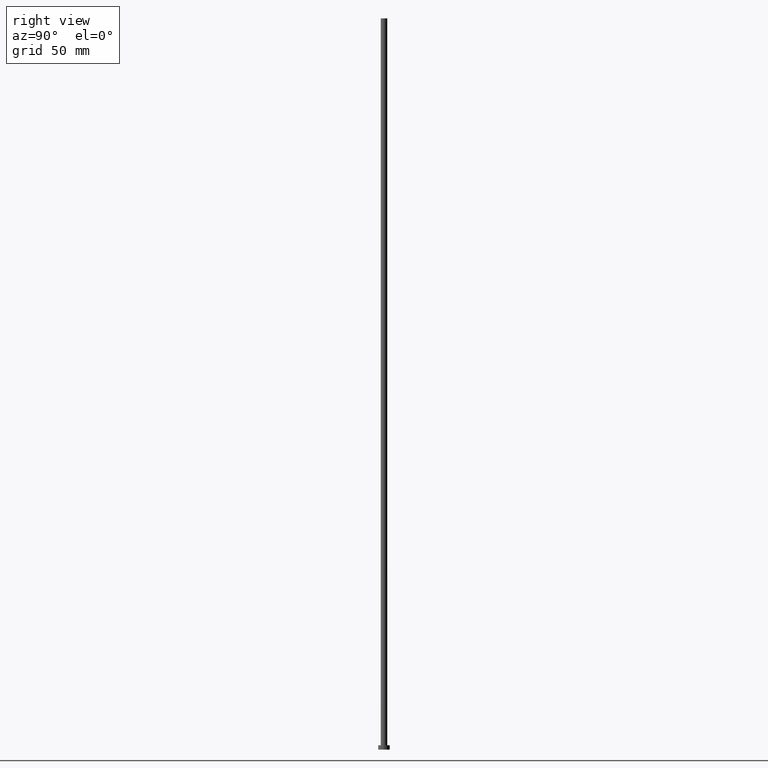
[diagram: clean part render]
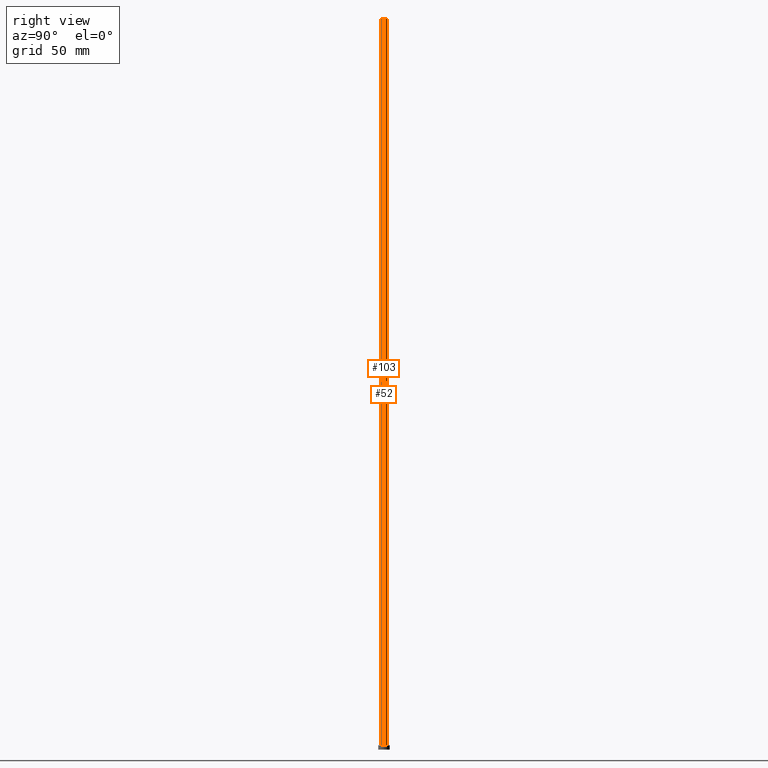
[diagram: same view with one multi-face feature highlighted, each face labeled with its STEP entity id]
A machine part, right view. The highlighted faces form ONE feature: a constant-radius fillet chain: 2 tangent blend faces with common blend radius 2.25 mm. The faces share edges in the B-rep.
Their STEP definitions:
[1] entity #52 (Cylinder):
#10 = LINE ( 'NONE', #245, #210 ) ;
#16 = AXIS2_PLACEMENT_3D ( 'NONE', #64, #224, #51 ) ;
#18 = ORIENTED_EDGE ( 'NONE', *, *, #128, .F. ) ;
#24 = VERTEX_POINT ( 'NONE', #234 ) ;
#51 = DIRECTION ( 'NONE',  ( 1.000000000000000000, 0.000000000000000000, 0.000000000000000000 ) ) ;
#52 = ADVANCED_FACE ( 'NONE', ( #87 ), #141, .T. ) ;
#64 = CARTESIAN_POINT ( 'NONE',  ( 0.000000000000000000, 0.000000000000000000, 3.000000000000000000 ) ) ;
#70 = CARTESIAN_POINT ( 'NONE',  ( -2.250000000000000000, 0.000000000000000000, 500.0000000000000000 ) ) ;
#71 = CARTESIAN_POINT ( 'NONE',  ( 2.250000000000000000, 2.755455298081543792E-16, 3.000000000000000000 ) ) ;
#77 = ORIENTED_EDGE ( 'NONE', *, *, #89, .T. ) ;
#82 = CIRCLE ( 'NONE', #16, 2.250000000000000000 ) ;
#85 = CARTESIAN_POINT ( 'NONE',  ( 0.000000000000000000, 0.000000000000000000, 500.0000000000000000 ) ) ;
#87 = FACE_OUTER_BOUND ( 'NONE', #255, .T. ) ;
#89 = EDGE_CURVE ( 'NONE', #153, #24, #82, .T. ) ;
#101 = DIRECTION ( 'NONE',  ( -1.000000000000000000, 0.000000000000000000, 0.000000000000000000 ) ) ;
#106 = DIRECTION ( 'NONE',  ( 1.000000000000000000, 0.000000000000000000, 0.000000000000000000 ) ) ;
#119 = VERTEX_POINT ( 'NONE', #70 ) ;
#128 = EDGE_CURVE ( 'NONE', #198, #119, #134, .T. ) ;
#134 = CIRCLE ( 'NONE', #159, 2.250000000000000000 ) ;
#136 = ORIENTED_EDGE ( 'NONE', *, *, #167, .F. ) ;
#140 = DIRECTION ( 'NONE',  ( -0.000000000000000000, -0.000000000000000000, -1.000000000000000000 ) ) ;
#141 = CYLINDRICAL_SURFACE ( 'NONE', #213, 2.250000000000000000 ) ;
#145 = CARTESIAN_POINT ( 'NONE',  ( -2.250000000000000000, 0.000000000000000000, 500.0000000000000000 ) ) ;
#153 = VERTEX_POINT ( 'NONE', #71 ) ;
#156 = VECTOR ( 'NONE', #189, 1000.000000000000000 ) ;
#159 = AXIS2_PLACEMENT_3D ( 'NONE', #169, #168, #106 ) ;
#163 = DIRECTION ( 'NONE',  ( -0.000000000000000000, -0.000000000000000000, -1.000000000000000000 ) ) ;
#165 = LINE ( 'NONE', #145, #156 ) ;
#167 = EDGE_CURVE ( 'NONE', #119, #24, #165, .T. ) ;
#168 = DIRECTION ( 'NONE',  ( 0.000000000000000000, 0.000000000000000000, 1.000000000000000000 ) ) ;
#169 = CARTESIAN_POINT ( 'NONE',  ( 0.000000000000000000, 0.000000000000000000, 500.0000000000000000 ) ) ;
#173 = ORIENTED_EDGE ( 'NONE', *, *, #223, .T. ) ;
#189 = DIRECTION ( 'NONE',  ( -0.000000000000000000, -0.000000000000000000, -1.000000000000000000 ) ) ;
#198 = VERTEX_POINT ( 'NONE', #228 ) ;
#210 = VECTOR ( 'NONE', #163, 1000.000000000000000 ) ;
#213 = AXIS2_PLACEMENT_3D ( 'NONE', #85, #140, #101 ) ;
#223 = EDGE_CURVE ( 'NONE', #198, #153, #10, .T. ) ;
#224 = DIRECTION ( 'NONE',  ( 0.000000000000000000, 0.000000000000000000, 1.000000000000000000 ) ) ;
#228 = CARTESIAN_POINT ( 'NONE',  ( 2.250000000000000000, 2.755455298081543792E-16, 500.0000000000000000 ) ) ;
#234 = CARTESIAN_POINT ( 'NONE',  ( -2.250000000000000000, 0.000000000000000000, 3.000000000000000000 ) ) ;
#245 = CARTESIAN_POINT ( 'NONE',  ( 2.250000000000000000, 2.755455298081543792E-16, 500.0000000000000000 ) ) ;
#255 = EDGE_LOOP ( 'NONE', ( #18, #173, #77, #136 ) ) ;
[2] entity #103 (Cylinder):
#2 = ORIENTED_EDGE ( 'NONE', *, *, #187, .T. ) ;
#6 = CIRCLE ( 'NONE', #91, 2.250000000000000000 ) ;
#10 = LINE ( 'NONE', #245, #210 ) ;
#17 = ORIENTED_EDGE ( 'NONE', *, *, #246, .F. ) ;
#24 = VERTEX_POINT ( 'NONE', #234 ) ;
#44 = ORIENTED_EDGE ( 'NONE', *, *, #223, .F. ) ;
#49 = FACE_OUTER_BOUND ( 'NONE', #151, .T. ) ;
#70 = CARTESIAN_POINT ( 'NONE',  ( -2.250000000000000000, 0.000000000000000000, 500.0000000000000000 ) ) ;
#71 = CARTESIAN_POINT ( 'NONE',  ( 2.250000000000000000, 2.755455298081543792E-16, 3.000000000000000000 ) ) ;
#90 = DIRECTION ( 'NONE',  ( 0.000000000000000000, 0.000000000000000000, 1.000000000000000000 ) ) ;
#91 = AXIS2_PLACEMENT_3D ( 'NONE', #105, #90, #250 ) ;
#102 = AXIS2_PLACEMENT_3D ( 'NONE', #121, #208, #183 ) ;
#103 = ADVANCED_FACE ( 'NONE', ( #49 ), #244, .T. ) ;
#105 = CARTESIAN_POINT ( 'NONE',  ( 0.000000000000000000, 0.000000000000000000, 500.0000000000000000 ) ) ;
#108 = CIRCLE ( 'NONE', #115, 2.250000000000000000 ) ;
#115 = AXIS2_PLACEMENT_3D ( 'NONE', #230, #185, #190 ) ;
#119 = VERTEX_POINT ( 'NONE', #70 ) ;
#121 = CARTESIAN_POINT ( 'NONE',  ( 0.000000000000000000, 0.000000000000000000, 500.0000000000000000 ) ) ;
#145 = CARTESIAN_POINT ( 'NONE',  ( -2.250000000000000000, 0.000000000000000000, 500.0000000000000000 ) ) ;
#151 = EDGE_LOOP ( 'NONE', ( #44, #17, #240, #2 ) ) ;
#153 = VERTEX_POINT ( 'NONE', #71 ) ;
#156 = VECTOR ( 'NONE', #189, 1000.000000000000000 ) ;
#163 = DIRECTION ( 'NONE',  ( -0.000000000000000000, -0.000000000000000000, -1.000000000000000000 ) ) ;
#165 = LINE ( 'NONE', #145, #156 ) ;
#167 = EDGE_CURVE ( 'NONE', #119, #24, #165, .T. ) ;
#183 = DIRECTION ( 'NONE',  ( -1.000000000000000000, 0.000000000000000000, 0.000000000000000000 ) ) ;
#185 = DIRECTION ( 'NONE',  ( 0.000000000000000000, 0.000000000000000000, 1.000000000000000000 ) ) ;
#187 = EDGE_CURVE ( 'NONE', #24, #153, #108, .T. ) ;
#189 = DIRECTION ( 'NONE',  ( -0.000000000000000000, -0.000000000000000000, -1.000000000000000000 ) ) ;
#190 = DIRECTION ( 'NONE',  ( 1.000000000000000000, 0.000000000000000000, 0.000000000000000000 ) ) ;
#198 = VERTEX_POINT ( 'NONE', #228 ) ;
#208 = DIRECTION ( 'NONE',  ( -0.000000000000000000, -0.000000000000000000, -1.000000000000000000 ) ) ;
#210 = VECTOR ( 'NONE', #163, 1000.000000000000000 ) ;
#223 = EDGE_CURVE ( 'NONE', #198, #153, #10, .T. ) ;
#228 = CARTESIAN_POINT ( 'NONE',  ( 2.250000000000000000, 2.755455298081543792E-16, 500.0000000000000000 ) ) ;
#230 = CARTESIAN_POINT ( 'NONE',  ( 0.000000000000000000, 0.000000000000000000, 3.000000000000000000 ) ) ;
#234 = CARTESIAN_POINT ( 'NONE',  ( -2.250000000000000000, 0.000000000000000000, 3.000000000000000000 ) ) ;
#240 = ORIENTED_EDGE ( 'NONE', *, *, #167, .T. ) ;
#244 = CYLINDRICAL_SURFACE ( 'NONE', #102, 2.250000000000000000 ) ;
#245 = CARTESIAN_POINT ( 'NONE',  ( 2.250000000000000000, 2.755455298081543792E-16, 500.0000000000000000 ) ) ;
#246 = EDGE_CURVE ( 'NONE', #119, #198, #6, .T. ) ;
#250 = DIRECTION ( 'NONE',  ( 1.000000000000000000, 0.000000000000000000, 0.000000000000000000 ) ) ;